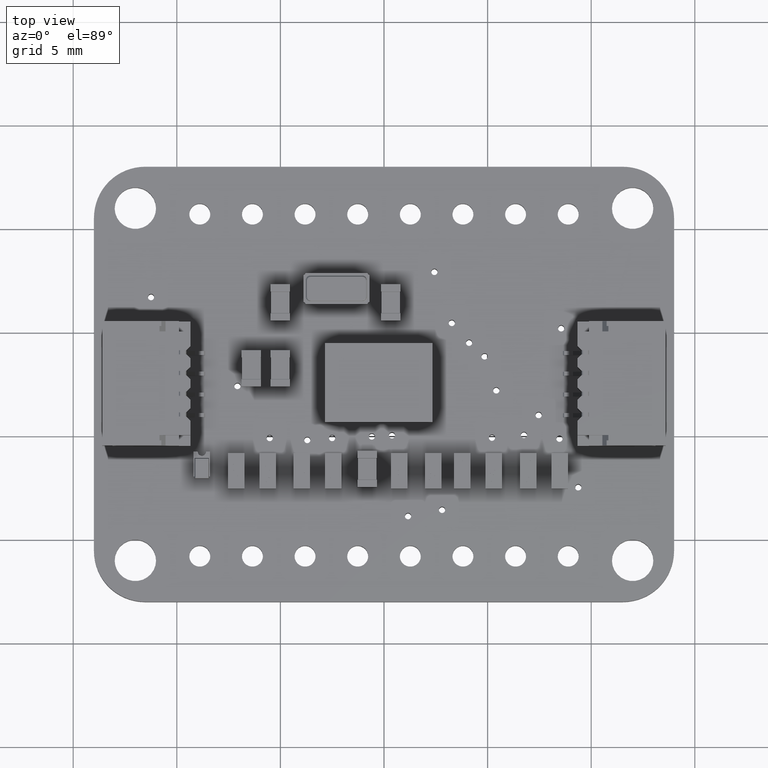
[diagram: clean part render]
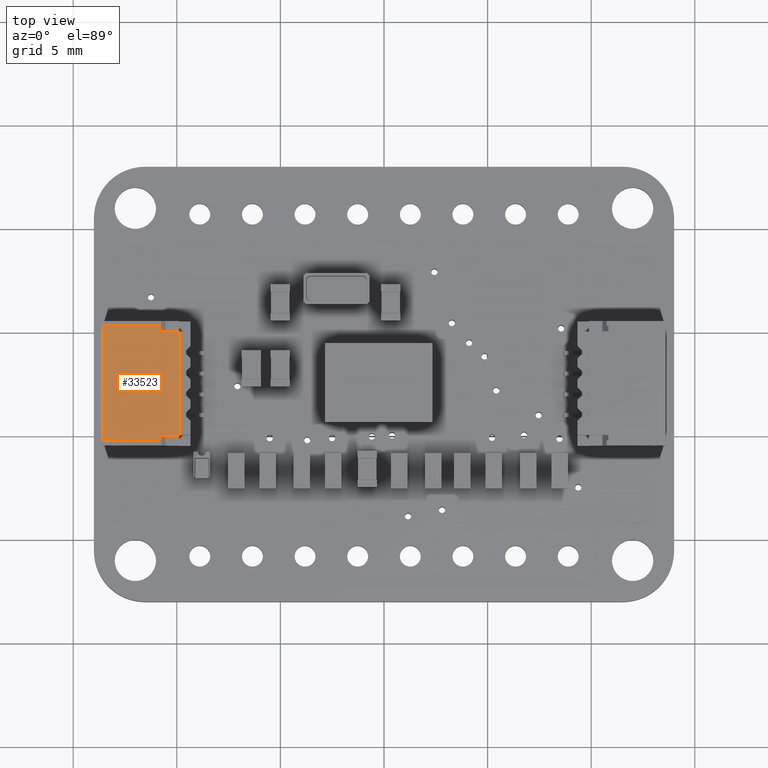
[diagram: same view with one face highlighted and labeled with its STEP entity id]
A machine part, top view. The second image highlights one B-rep face of the part: STEP entity #33523.
In plain terms, the highlighted planar face has unit normal (-0, -0, 1).
Its self-contained STEP definition (entity closure, byte-faithful):
#32824 = EDGE_CURVE('',#32825,#32827,#32829,.T.);
#32825 = VERTEX_POINT('',#32826);
#32826 = CARTESIAN_POINT('',(-2.5,3.255,0.195));
#32827 = VERTEX_POINT('',#32828);
#32828 = CARTESIAN_POINT('',(2.5,3.255,0.195));
#32829 = LINE('',#32830,#32831);
#32830 = CARTESIAN_POINT('',(-3.,3.255,0.195));
#32831 = VECTOR('',#32832,1.);
#32832 = DIRECTION('',(1.,0.,-6.982966722219E-15));
#32993 = VERTEX_POINT('',#32994);
#32994 = CARTESIAN_POINT('',(2.76,3.255,3.895));
#33002 = EDGE_CURVE('',#33003,#32993,#33005,.T.);
#33003 = VERTEX_POINT('',#33004);
#33004 = CARTESIAN_POINT('',(-2.76,3.255,3.895));
#33005 = LINE('',#33006,#33007);
#33006 = CARTESIAN_POINT('',(-3.,3.255,3.895));
#33007 = VECTOR('',#33008,1.);
#33008 = DIRECTION('',(1.,-2.438091212181E-29,-8.512554900196E-44));
#33523 = ADVANCED_FACE('',(#33524),#33572,.T.);
#33524 = FACE_BOUND('',#33525,.T.);
#33525 = EDGE_LOOP('',(#33526,#33527,#33535,#33543,#33549,#33550,#33558,
    #33566));
#33526 = ORIENTED_EDGE('',*,*,#33002,.T.);
#33527 = ORIENTED_EDGE('',*,*,#33528,.F.);
#33528 = EDGE_CURVE('',#33529,#32993,#33531,.T.);
#33529 = VERTEX_POINT('',#33530);
#33530 = CARTESIAN_POINT('',(2.76,3.255,1.133675134595));
#33531 = LINE('',#33532,#33533);
#33532 = CARTESIAN_POINT('',(2.76,3.255,3.895));
#33533 = VECTOR('',#33534,1.);
#33534 = DIRECTION('',(0.,-3.491483361109E-15,1.));
#33535 = ORIENTED_EDGE('',*,*,#33536,.T.);
#33536 = EDGE_CURVE('',#33529,#33537,#33539,.T.);
#33537 = VERTEX_POINT('',#33538);
#33538 = CARTESIAN_POINT('',(2.5,3.255,1.133675134595));
#33539 = LINE('',#33540,#33541);
#33540 = CARTESIAN_POINT('',(-4.,3.255,1.133675134595));
#33541 = VECTOR('',#33542,1.);
#33542 = DIRECTION('',(-1.,2.438091212181E-29,8.512554900196E-44));
#33543 = ORIENTED_EDGE('',*,*,#33544,.T.);
#33544 = EDGE_CURVE('',#33537,#32827,#33545,.T.);
#33545 = LINE('',#33546,#33547);
#33546 = CARTESIAN_POINT('',(2.5,3.255,3.895));
#33547 = VECTOR('',#33548,1.);
#33548 = DIRECTION('',(-0.,3.491483361109E-15,-1.));
#33549 = ORIENTED_EDGE('',*,*,#32824,.F.);
#33550 = ORIENTED_EDGE('',*,*,#33551,.T.);
#33551 = EDGE_CURVE('',#32825,#33552,#33554,.T.);
#33552 = VERTEX_POINT('',#33553);
#33553 = CARTESIAN_POINT('',(-2.5,3.255,1.133675134595));
#33554 = LINE('',#33555,#33556);
#33555 = CARTESIAN_POINT('',(-2.5,3.255,3.895));
#33556 = VECTOR('',#33557,1.);
#33557 = DIRECTION('',(0.,-3.491483361109E-15,1.));
#33558 = ORIENTED_EDGE('',*,*,#33559,.T.);
#33559 = EDGE_CURVE('',#33552,#33560,#33562,.T.);
#33560 = VERTEX_POINT('',#33561);
#33561 = CARTESIAN_POINT('',(-2.76,3.255,1.133675134595));
#33562 = LINE('',#33563,#33564);
#33563 = CARTESIAN_POINT('',(-3.,3.255,1.133675134595));
#33564 = VECTOR('',#33565,1.);
#33565 = DIRECTION('',(-1.,2.438091212181E-29,8.512554900196E-44));
#33566 = ORIENTED_EDGE('',*,*,#33567,.F.);
#33567 = EDGE_CURVE('',#33003,#33560,#33568,.T.);
#33568 = LINE('',#33569,#33570);
#33569 = CARTESIAN_POINT('',(-2.76,3.255,3.895));
#33570 = VECTOR('',#33571,1.);
#33571 = DIRECTION('',(0.,3.491483361109E-15,-1.));
#33572 = PLANE('',#33573);
#33573 = AXIS2_PLACEMENT_3D('',#33574,#33575,#33576);
#33574 = CARTESIAN_POINT('',(-3.,3.255,3.895));
#33575 = DIRECTION('',(2.438091212181E-29,1.,3.491483361109E-15));
#33576 = DIRECTION('',(0.,-3.491483361109E-15,1.));